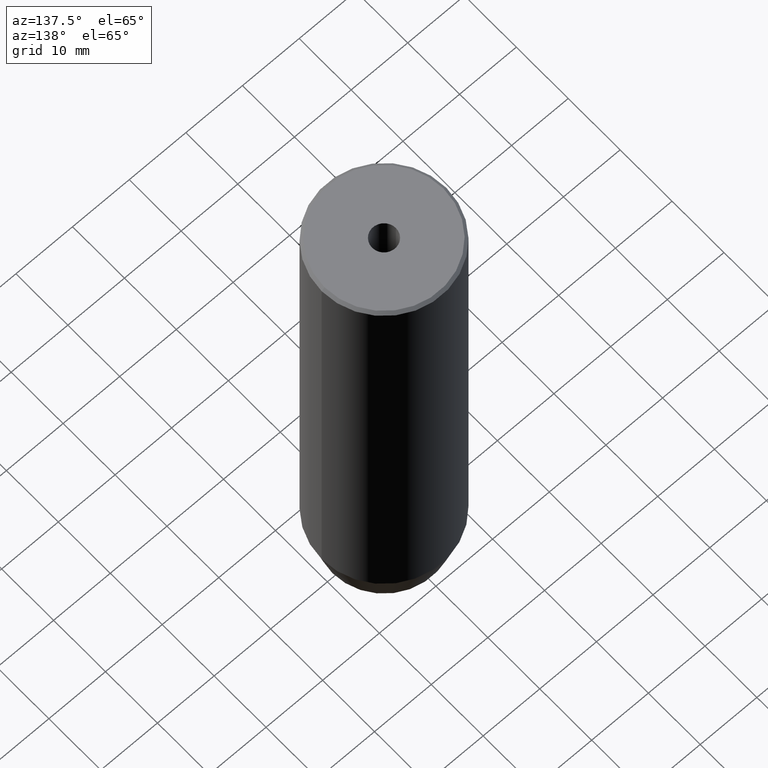
[diagram: clean part render]
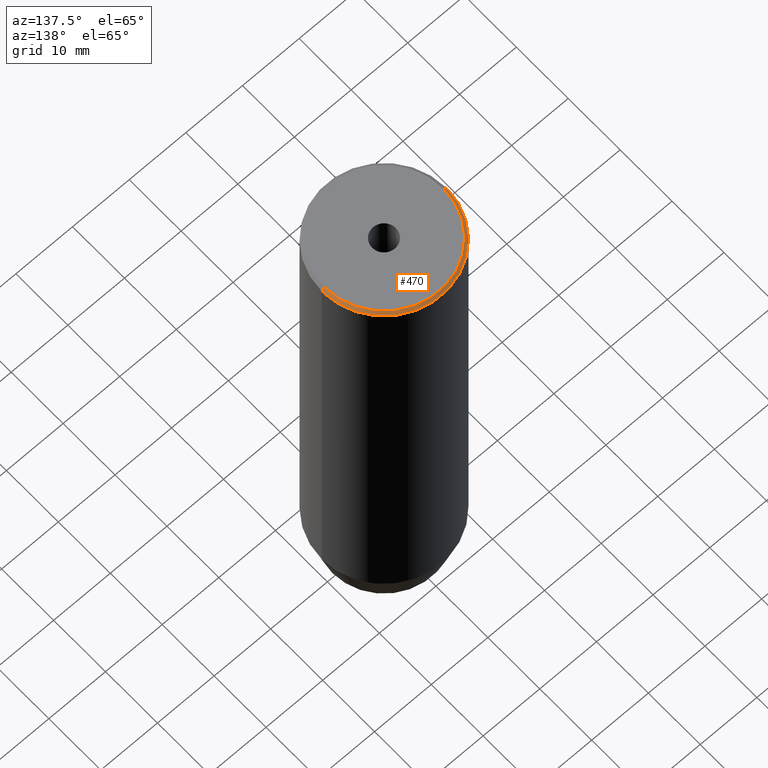
[diagram: same view with one face highlighted and labeled with its STEP entity id]
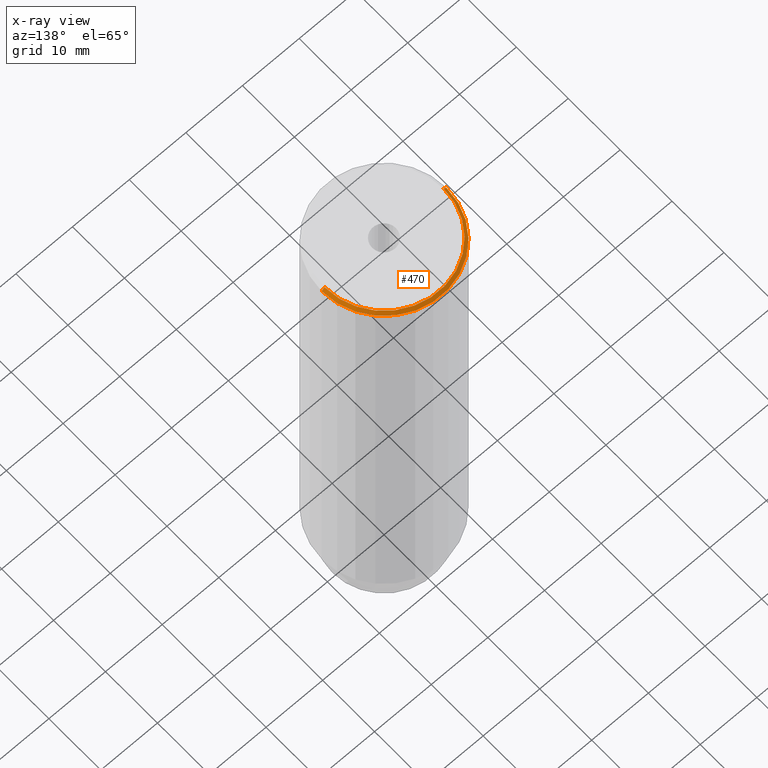
[diagram: x-ray of the same camera — body ghosted, the highlighted face saturated]
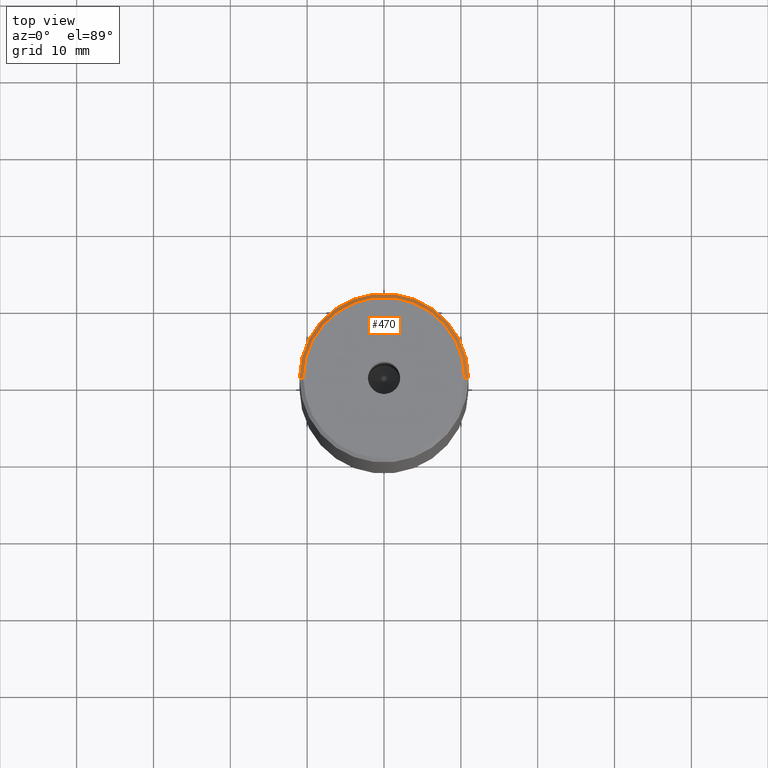
[diagram: same view with one face highlighted and labeled with its STEP entity id]
A machine part, auxiliary view. The second image highlights one B-rep face of the part: STEP entity #470.
The next image is the same camera in x-ray: the body ghosted, the highlighted face saturated — about 0% of this face is hidden behind the body in this view.
A second angle (top view) of the same face is appended — the face is thin or edge-on in the first view.
In plain terms, the highlighted conical surface has half-angle 45 deg.
Its self-contained STEP definition (entity closure, byte-faithful):
#11 = ORIENTED_EDGE ( 'NONE', *, *, #171, .T. ) ;
#24 = CIRCLE ( 'NONE', #475, 10.49999999999999467 ) ;
#59 = EDGE_CURVE ( 'NONE', #286, #344, #460, .T. ) ;
#80 = CARTESIAN_POINT ( 'NONE',  ( -11.00000000000000000, 1.347111479062088405E-15, -0.5000000000000004441 ) ) ;
#87 = CARTESIAN_POINT ( 'NONE',  ( -10.49999999999999467, 0.000000000000000000, 0.000000000000000000 ) ) ;
#104 = ORIENTED_EDGE ( 'NONE', *, *, #59, .F. ) ;
#107 = DIRECTION ( 'NONE',  ( 0.000000000000000000, 0.000000000000000000, -1.000000000000000000 ) ) ;
#108 = ORIENTED_EDGE ( 'NONE', *, *, #233, .F. ) ;
#118 = VERTEX_POINT ( 'NONE', #179 ) ;
#126 = DIRECTION ( 'NONE',  ( 0.000000000000000000, 0.000000000000000000, -1.000000000000000000 ) ) ;
#138 = DIRECTION ( 'NONE',  ( 0.7071067811865500152, 8.659560562354962440E-17, -0.7071067811865451302 ) ) ;
#143 = DIRECTION ( 'NONE',  ( -1.000000000000000000, 0.000000000000000000, 0.000000000000000000 ) ) ;
#148 = VERTEX_POINT ( 'NONE', #327 ) ;
#161 = CONICAL_SURFACE ( 'NONE', #224, 10.49999999999999467, 0.7853981633974517207 ) ;
#171 = EDGE_CURVE ( 'NONE', #148, #118, #455, .T. ) ;
#173 = FACE_OUTER_BOUND ( 'NONE', #413, .T. ) ;
#179 = CARTESIAN_POINT ( 'NONE',  ( 11.00000000000000000, 0.000000000000000000, -0.5000000000000004441 ) ) ;
#224 = AXIS2_PLACEMENT_3D ( 'NONE', #540, #126, #143 ) ;
#233 = EDGE_CURVE ( 'NONE', #344, #118, #272, .T. ) ;
#272 = CIRCLE ( 'NONE', #494, 11.00000000000000000 ) ;
#279 = EDGE_CURVE ( 'NONE', #148, #286, #24, .T. ) ;
#286 = VERTEX_POINT ( 'NONE', #526 ) ;
#288 = DIRECTION ( 'NONE',  ( 1.000000000000000000, 0.000000000000000000, 0.000000000000000000 ) ) ;
#298 = DIRECTION ( 'NONE',  ( -0.000000000000000000, -0.000000000000000000, 1.000000000000000000 ) ) ;
#327 = CARTESIAN_POINT ( 'NONE',  ( 10.49999999999999467, 1.316495309083404420E-15, 0.000000000000000000 ) ) ;
#344 = VERTEX_POINT ( 'NONE', #80 ) ;
#360 = DIRECTION ( 'NONE',  ( -0.7071067811865500152, 0.000000000000000000, -0.7071067811865451302 ) ) ;
#413 = EDGE_LOOP ( 'NONE', ( #512, #11, #108, #104 ) ) ;
#435 = CARTESIAN_POINT ( 'NONE',  ( 0.000000000000000000, 0.000000000000000000, -0.5000000000000004441 ) ) ;
#455 = LINE ( 'NONE', #544, #536 ) ;
#460 = LINE ( 'NONE', #87, #493 ) ;
#470 = ADVANCED_FACE ( 'NONE', ( #173 ), #161, .T. ) ;
#475 = AXIS2_PLACEMENT_3D ( 'NONE', #522, #298, #479 ) ;
#479 = DIRECTION ( 'NONE',  ( 1.000000000000000000, 0.000000000000000000, 0.000000000000000000 ) ) ;
#493 = VECTOR ( 'NONE', #360, 1000.000000000000114 ) ;
#494 = AXIS2_PLACEMENT_3D ( 'NONE', #435, #107, #288 ) ;
#512 = ORIENTED_EDGE ( 'NONE', *, *, #279, .F. ) ;
#522 = CARTESIAN_POINT ( 'NONE',  ( 0.000000000000000000, 0.000000000000000000, 0.000000000000000000 ) ) ;
#526 = CARTESIAN_POINT ( 'NONE',  ( -10.49999999999999467, 0.000000000000000000, 0.000000000000000000 ) ) ;
#536 = VECTOR ( 'NONE', #138, 1000.000000000000114 ) ;
#540 = CARTESIAN_POINT ( 'NONE',  ( 0.000000000000000000, 0.000000000000000000, 0.000000000000000000 ) ) ;
#544 = CARTESIAN_POINT ( 'NONE',  ( 10.49999999999999467, 1.285879139104720239E-15, 0.000000000000000000 ) ) ;